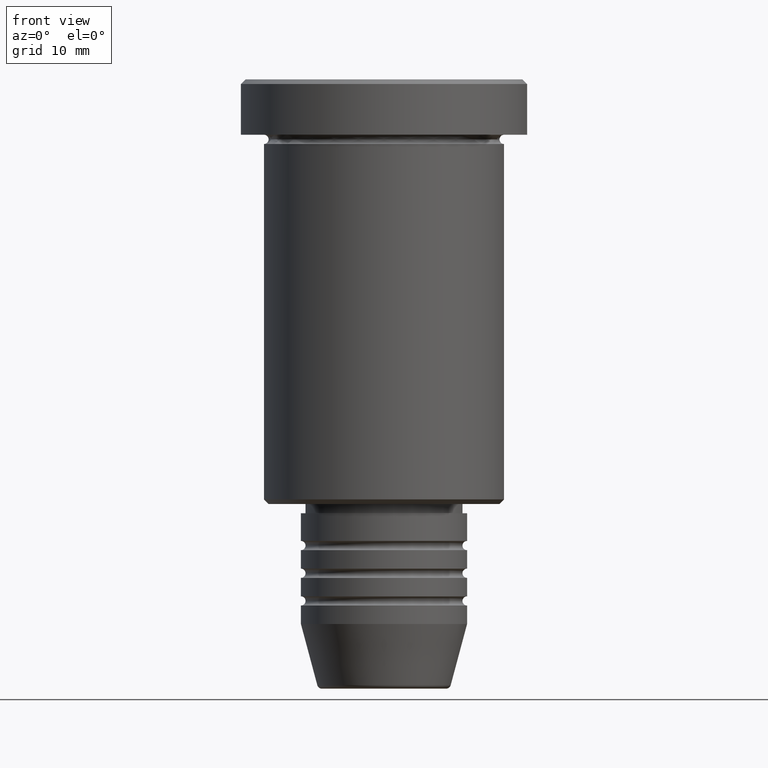
[diagram: clean part render]
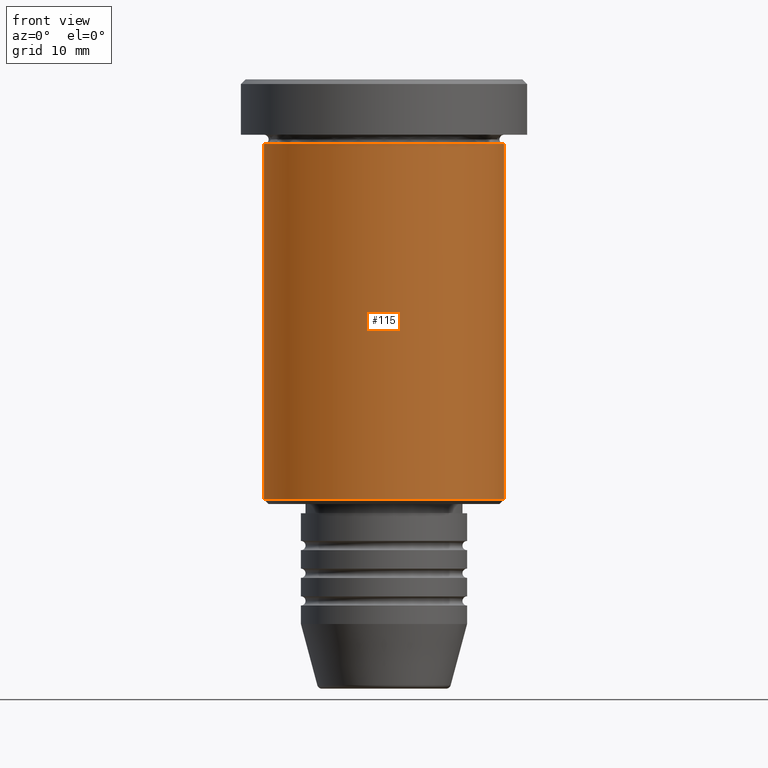
[diagram: same view with one face highlighted and labeled with its STEP entity id]
A machine part, front view. The second image highlights one B-rep face of the part: STEP entity #115.
In plain terms, the highlighted cylindrical surface (partial cylindrical patch) has radius 13 mm, axis along (-0, -0, 1).
Its self-contained STEP definition (entity closure, byte-faithful):
#3 = EDGE_LOOP ( 'NONE', ( #559, #939, #256, #143 ) ) ;
#16 = LINE ( 'NONE', #647, #908 ) ;
#22 = CARTESIAN_POINT ( 'NONE',  ( 13.00000000000000000, 0.000000000000000000, 0.000000000000000000 ) ) ;
#72 = VERTEX_POINT ( 'NONE', #246 ) ;
#82 = CARTESIAN_POINT ( 'NONE',  ( 0.000000000000000000, 0.000000000000000000, -45.50000000000000000 ) ) ;
#93 = DIRECTION ( 'NONE',  ( -0.000000000000000000, -0.000000000000000000, 1.000000000000000000 ) ) ;
#115 = ADVANCED_FACE ( 'NONE', ( #518 ), #981, .T. ) ;
#140 = CARTESIAN_POINT ( 'NONE',  ( 13.00000000000000000, 0.000000000000000000, -6.999999999999995559 ) ) ;
#143 = ORIENTED_EDGE ( 'NONE', *, *, #1116, .F. ) ;
#187 = CARTESIAN_POINT ( 'NONE',  ( 0.000000000000000000, 0.000000000000000000, -6.999999999999995559 ) ) ;
#246 = CARTESIAN_POINT ( 'NONE',  ( -13.00000000000000000, 1.592040838891559095E-15, -45.50000000000000000 ) ) ;
#254 = EDGE_CURVE ( 'NONE', #72, #635, #752, .T. ) ;
#256 = ORIENTED_EDGE ( 'NONE', *, *, #862, .T. ) ;
#276 = AXIS2_PLACEMENT_3D ( 'NONE', #82, #910, #470 ) ;
#287 = DIRECTION ( 'NONE',  ( -0.000000000000000000, -0.000000000000000000, 1.000000000000000000 ) ) ;
#314 = DIRECTION ( 'NONE',  ( -0.000000000000000000, -0.000000000000000000, 1.000000000000000000 ) ) ;
#380 = AXIS2_PLACEMENT_3D ( 'NONE', #187, #287, #541 ) ;
#425 = CARTESIAN_POINT ( 'NONE',  ( 13.00000000000000000, 0.000000000000000000, -45.50000000000000000 ) ) ;
#434 = AXIS2_PLACEMENT_3D ( 'NONE', #971, #976, #442 ) ;
#442 = DIRECTION ( 'NONE',  ( 1.000000000000000000, 0.000000000000000000, 0.000000000000000000 ) ) ;
#470 = DIRECTION ( 'NONE',  ( -1.000000000000000000, 0.000000000000000000, 0.000000000000000000 ) ) ;
#518 = FACE_OUTER_BOUND ( 'NONE', #3, .T. ) ;
#528 = CARTESIAN_POINT ( 'NONE',  ( -13.00000000000000000, 1.592040838891559095E-15, -6.999999999999995559 ) ) ;
#541 = DIRECTION ( 'NONE',  ( 1.000000000000000000, 0.000000000000000000, 0.000000000000000000 ) ) ;
#559 = ORIENTED_EDGE ( 'NONE', *, *, #1171, .F. ) ;
#630 = VERTEX_POINT ( 'NONE', #140 ) ;
#635 = VERTEX_POINT ( 'NONE', #425 ) ;
#647 = CARTESIAN_POINT ( 'NONE',  ( -13.00000000000000000, 1.592040838891559095E-15, 0.000000000000000000 ) ) ;
#660 = VERTEX_POINT ( 'NONE', #528 ) ;
#752 = CIRCLE ( 'NONE', #276, 13.00000000000000000 ) ;
#777 = VECTOR ( 'NONE', #314, 1000.000000000000000 ) ;
#862 = EDGE_CURVE ( 'NONE', #635, #630, #941, .T. ) ;
#908 = VECTOR ( 'NONE', #93, 1000.000000000000000 ) ;
#910 = DIRECTION ( 'NONE',  ( -0.000000000000000000, -0.000000000000000000, 1.000000000000000000 ) ) ;
#939 = ORIENTED_EDGE ( 'NONE', *, *, #254, .T. ) ;
#941 = LINE ( 'NONE', #22, #777 ) ;
#967 = CIRCLE ( 'NONE', #380, 13.00000000000000000 ) ;
#971 = CARTESIAN_POINT ( 'NONE',  ( 0.000000000000000000, 0.000000000000000000, 0.000000000000000000 ) ) ;
#976 = DIRECTION ( 'NONE',  ( -0.000000000000000000, -0.000000000000000000, 1.000000000000000000 ) ) ;
#981 = CYLINDRICAL_SURFACE ( 'NONE', #434, 13.00000000000000000 ) ;
#1116 = EDGE_CURVE ( 'NONE', #660, #630, #967, .T. ) ;
#1171 = EDGE_CURVE ( 'NONE', #72, #660, #16, .T. ) ;